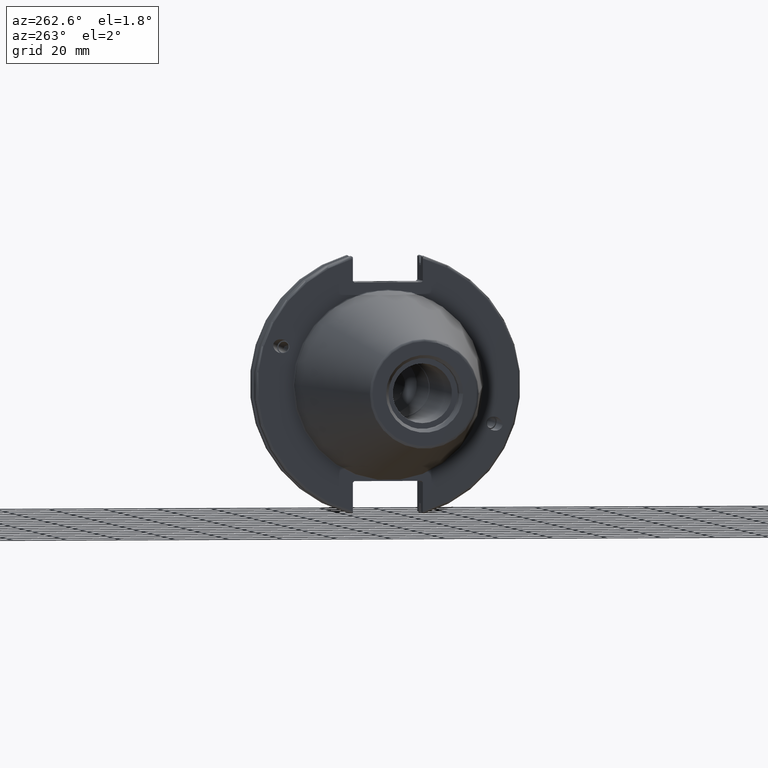
[diagram: clean part render]
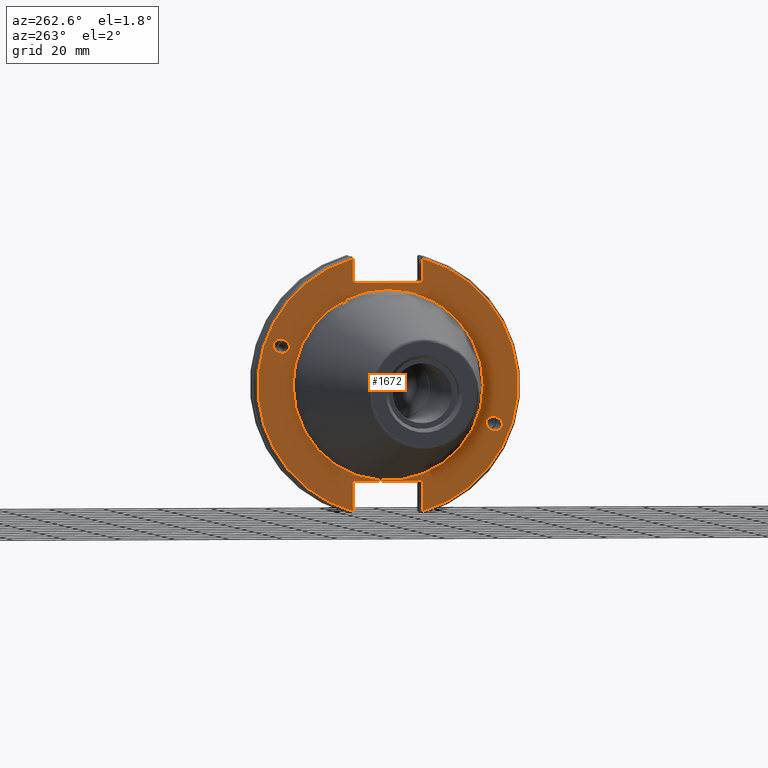
[diagram: same view with one face highlighted and labeled with its STEP entity id]
A machine part, auxiliary view. The second image highlights one B-rep face of the part: STEP entity #1672.
In plain terms, the highlighted planar face has unit normal (-1, 0, 0).
Its self-contained STEP definition (entity closure, byte-faithful):
#31=ELLIPSE('',#1804,3.05193647190364,2.5);
#32=ELLIPSE('',#1843,3.05193647190364,2.5);
#45=PLANE('',#1856);
#106=FACE_BOUND('',#294,.T.);
#107=FACE_BOUND('',#295,.T.);
#108=FACE_BOUND('',#296,.T.);
#192=FACE_OUTER_BOUND('',#293,.T.);
#293=EDGE_LOOP('',(#1343,#1344,#1345,#1346,#1347,#1348,#1349,#1350,#1351,
#1352,#1353,#1354));
#294=EDGE_LOOP('',(#1355));
#295=EDGE_LOOP('',(#1356));
#296=EDGE_LOOP('',(#1357,#1358));
#391=LINE('',#3111,#485);
#392=LINE('',#3113,#486);
#393=LINE('',#3115,#487);
#394=LINE('',#3117,#488);
#395=LINE('',#3119,#489);
#396=LINE('',#3123,#490);
#397=LINE('',#3125,#491);
#398=LINE('',#3127,#492);
#399=LINE('',#3129,#493);
#400=LINE('',#3130,#494);
#485=VECTOR('',#2226,10.);
#486=VECTOR('',#2227,10.);
#487=VECTOR('',#2228,10.);
#488=VECTOR('',#2229,10.);
#489=VECTOR('',#2230,10.);
#490=VECTOR('',#2233,10.);
#491=VECTOR('',#2234,10.);
#492=VECTOR('',#2235,10.);
#493=VECTOR('',#2236,10.);
#494=VECTOR('',#2237,10.);
#603=CIRCLE('',#1852,35.125);
#604=CIRCLE('',#1853,35.125);
#607=CIRCLE('',#1857,48.2125);
#608=CIRCLE('',#1858,48.2125);
#711=VERTEX_POINT('',#2812);
#754=VERTEX_POINT('',#3081);
#760=VERTEX_POINT('',#3098);
#761=VERTEX_POINT('',#3100);
#763=VERTEX_POINT('',#3107);
#764=VERTEX_POINT('',#3108);
#765=VERTEX_POINT('',#3110);
#766=VERTEX_POINT('',#3112);
#767=VERTEX_POINT('',#3114);
#768=VERTEX_POINT('',#3116);
#769=VERTEX_POINT('',#3118);
#770=VERTEX_POINT('',#3120);
#771=VERTEX_POINT('',#3122);
#772=VERTEX_POINT('',#3124);
#773=VERTEX_POINT('',#3126);
#774=VERTEX_POINT('',#3128);
#911=EDGE_CURVE('',#711,#711,#31,.T.);
#967=EDGE_CURVE('',#754,#754,#32,.T.);
#975=EDGE_CURVE('',#760,#761,#603,.T.);
#976=EDGE_CURVE('',#761,#760,#604,.T.);
#979=EDGE_CURVE('',#763,#764,#607,.T.);
#980=EDGE_CURVE('',#763,#765,#391,.T.);
#981=EDGE_CURVE('',#766,#765,#392,.T.);
#982=EDGE_CURVE('',#766,#767,#393,.T.);
#983=EDGE_CURVE('',#768,#767,#394,.T.);
#984=EDGE_CURVE('',#768,#769,#395,.T.);
#985=EDGE_CURVE('',#770,#769,#608,.T.);
#986=EDGE_CURVE('',#770,#771,#396,.T.);
#987=EDGE_CURVE('',#772,#771,#397,.T.);
#988=EDGE_CURVE('',#772,#773,#398,.T.);
#989=EDGE_CURVE('',#774,#773,#399,.T.);
#990=EDGE_CURVE('',#774,#764,#400,.T.);
#1343=ORIENTED_EDGE('',*,*,#979,.F.);
#1344=ORIENTED_EDGE('',*,*,#980,.T.);
#1345=ORIENTED_EDGE('',*,*,#981,.F.);
#1346=ORIENTED_EDGE('',*,*,#982,.T.);
#1347=ORIENTED_EDGE('',*,*,#983,.F.);
#1348=ORIENTED_EDGE('',*,*,#984,.T.);
#1349=ORIENTED_EDGE('',*,*,#985,.F.);
#1350=ORIENTED_EDGE('',*,*,#986,.T.);
#1351=ORIENTED_EDGE('',*,*,#987,.F.);
#1352=ORIENTED_EDGE('',*,*,#988,.T.);
#1353=ORIENTED_EDGE('',*,*,#989,.F.);
#1354=ORIENTED_EDGE('',*,*,#990,.T.);
#1355=ORIENTED_EDGE('',*,*,#911,.T.);
#1356=ORIENTED_EDGE('',*,*,#967,.T.);
#1357=ORIENTED_EDGE('',*,*,#976,.F.);
#1358=ORIENTED_EDGE('',*,*,#975,.F.);
#1672=ADVANCED_FACE('',(#192,#106,#107,#108),#45,.T.);
#1804=AXIS2_PLACEMENT_3D('',#2814,#2100,#2101);
#1843=AXIS2_PLACEMENT_3D('',#3083,#2194,#2195);
#1852=AXIS2_PLACEMENT_3D('',#3101,#2214,#2215);
#1853=AXIS2_PLACEMENT_3D('',#3102,#2216,#2217);
#1856=AXIS2_PLACEMENT_3D('',#3106,#2222,#2223);
#1857=AXIS2_PLACEMENT_3D('',#3109,#2224,#2225);
#1858=AXIS2_PLACEMENT_3D('',#3121,#2231,#2232);
#2100=DIRECTION('center_axis',(1.,0.,0.));
#2101=DIRECTION('ref_axis',(0.,-0.939692620785907,-0.342020143325671));
#2194=DIRECTION('center_axis',(1.,0.,0.));
#2195=DIRECTION('ref_axis',(0.,0.939692620785907,0.342020143325672));
#2214=DIRECTION('center_axis',(-1.,0.,0.));
#2215=DIRECTION('ref_axis',(0.,-1.,1.83697019872103E-16));
#2216=DIRECTION('center_axis',(-1.,0.,0.));
#2217=DIRECTION('ref_axis',(0.,-1.,1.83697019872103E-16));
#2222=DIRECTION('center_axis',(-1.,0.,0.));
#2223=DIRECTION('ref_axis',(0.,0.,1.));
#2224=DIRECTION('center_axis',(1.,0.,0.));
#2225=DIRECTION('ref_axis',(0.,-1.,1.60812264967664E-16));
#2226=DIRECTION('',(0.,0.,-1.));
#2227=DIRECTION('',(0.,-0.707106781186549,0.707106781186546));
#2228=DIRECTION('',(0.,1.,0.));
#2229=DIRECTION('',(0.,-0.707106781186549,-0.707106781186546));
#2230=DIRECTION('',(0.,0.,1.));
#2231=DIRECTION('center_axis',(1.,0.,0.));
#2232=DIRECTION('ref_axis',(0.,1.,-6.12323399573677E-17));
#2233=DIRECTION('',(0.,0.,1.));
#2234=DIRECTION('',(0.,0.707106781186549,-0.707106781186546));
#2235=DIRECTION('',(0.,-1.,0.));
#2236=DIRECTION('',(0.,0.707106781186549,0.707106781186546));
#2237=DIRECTION('',(0.,0.,-1.));
#2812=CARTESIAN_POINT('',(3.175,-36.5992078912529,-13.3210222701368));
#2814=CARTESIAN_POINT('Origin',(3.175,-39.4670900730082,-14.3648460196781));
#3081=CARTESIAN_POINT('',(3.175,36.5992078912529,13.3210222701368));
#3083=CARTESIAN_POINT('Origin',(3.175,39.4670900730082,14.3648460196781));
#3098=CARTESIAN_POINT('',(3.175,-4.30157188200508E-15,35.125));
#3100=CARTESIAN_POINT('',(3.175,35.125,-1.07539297050127E-14));
#3101=CARTESIAN_POINT('Origin',(3.175,0.,0.));
#3102=CARTESIAN_POINT('Origin',(3.175,0.,0.));
#3106=CARTESIAN_POINT('Origin',(3.175,49.2125,0.));
#3107=CARTESIAN_POINT('',(3.175,-12.95,46.4407434937254));
#3108=CARTESIAN_POINT('',(3.175,-12.95,-46.4407434937254));
#3109=CARTESIAN_POINT('Origin',(3.175,0.,0.));
#3110=CARTESIAN_POINT('',(3.175,-12.95,38.219));
#3111=CARTESIAN_POINT('',(3.175,-12.95,18.8595));
#3112=CARTESIAN_POINT('',(3.175,-12.45,37.719));
#3113=CARTESIAN_POINT('',(3.175,12.2703750000001,12.998625));
#3114=CARTESIAN_POINT('',(3.175,12.45,37.719));
#3115=CARTESIAN_POINT('',(3.175,24.60625,37.719));
#3116=CARTESIAN_POINT('',(3.175,12.95,38.219));
#3117=CARTESIAN_POINT('',(3.175,12.335875,37.604875));
#3118=CARTESIAN_POINT('',(3.175,12.95,46.4407434937254));
#3119=CARTESIAN_POINT('',(3.175,12.95,18.8595));
#3120=CARTESIAN_POINT('',(3.175,12.95,-46.4407434937254));
#3121=CARTESIAN_POINT('Origin',(3.175,0.,0.));
#3122=CARTESIAN_POINT('',(3.175,12.95,-35.806));
#3123=CARTESIAN_POINT('',(3.175,12.95,-17.653));
#3124=CARTESIAN_POINT('',(3.175,12.45,-35.306));
#3125=CARTESIAN_POINT('',(3.175,12.939125,-35.795125));
#3126=CARTESIAN_POINT('',(3.175,-12.45,-35.306));
#3127=CARTESIAN_POINT('',(3.175,24.60625,-35.306));
#3128=CARTESIAN_POINT('',(3.175,-12.95,-35.806));
#3129=CARTESIAN_POINT('',(3.175,11.6671250000001,-11.188875));
#3130=CARTESIAN_POINT('',(3.175,-12.95,-17.653));